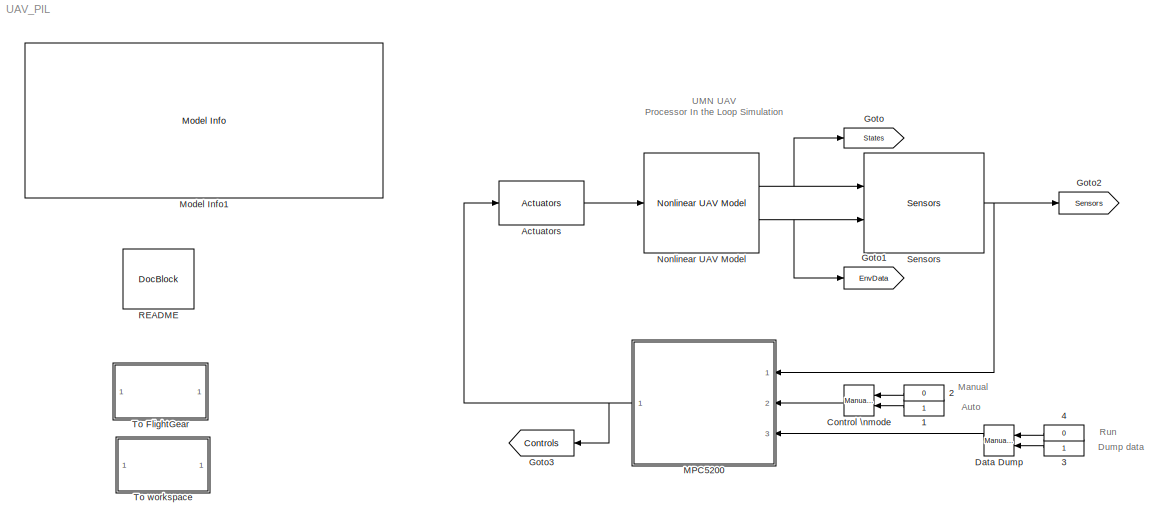
MODEL UAV_PIL
KIND model
BLOCK [Constant] 1
  OutDataType = sfix(16)
  OutDataTypeMode = uint8
  OutDataTypeStr = uint8
  OutScaling = 2^0
  SID = 960
BLOCK [Constant] 2
  OutDataType = sfix(16)
  OutDataTypeMode = uint8
  OutDataTypeStr = uint8
  OutScaling = 2^0
  SID = 961
  Value = 0
BLOCK [Constant] 3
  OutDataType = sfix(16)
  OutDataTypeMode = uint8
  OutDataTypeStr = uint8
  OutScaling = 2^0
  SID = 1062
BLOCK [Constant] 4
  OutDataType = sfix(16)
  OutDataTypeMode = uint8
  OutDataTypeStr = uint8
  OutScaling = 2^0
  SID = 1063
  Value = 0
BLOCK [Reference] Actuators  REF=Actuator_Lib/Actuators
  FunctionWithSeparateData = off
  Ports = [1, 1]
  RTWMemSecDataConstants = Inherit from model
  RTWMemSecDataInternal = Inherit from model
  RTWMemSecDataParameters = Inherit from model
  RTWMemSecFuncExecute = Inherit from model
  RTWMemSecFuncInitTerm = Inherit from model
  SID = 997
  ShowPortLabels = FromPortIcon
  SourceBlock = Actuator_Lib/Actuators
  SourceType = SubSystem
  SystemSampleTime = -1
BLOCK [Reference] Control \nmode  REF=simulink/Signal\nRouting/Manual Switch
  FunctionWithSeparateData = off
  Ports = [2, 1]
  RTWMemSecDataConstants = Inherit from model
  RTWMemSecDataInternal = Inherit from model
  RTWMemSecDataParameters = Inherit from model
  RTWMemSecFuncExecute = Inherit from model
  RTWMemSecFuncInitTerm = Inherit from model
  SID = 962
  ShowPortLabels = FromPortIcon
  SourceBlock = simulink/Signal\nRouting/Manual Switch
  SourceType = Manual Switch
  SystemSampleTime = -1
  action = 0
  sw = 1
  varsize = off
BLOCK [Reference] Data Dump  REF=simulink/Signal\nRouting/Manual Switch
  FunctionWithSeparateData = off
  Ports = [2, 1]
  RTWMemSecDataConstants = Inherit from model
  RTWMemSecDataInternal = Inherit from model
  RTWMemSecDataParameters = Inherit from model
  RTWMemSecFuncExecute = Inherit from model
  RTWMemSecFuncInitTerm = Inherit from model
  SID = 1064
  ShowPortLabels = FromPortIcon
  SourceBlock = simulink/Signal\nRouting/Manual Switch
  SourceType = Manual Switch
  SystemSampleTime = -1
  action = 0
  sw = 1
  varsize = off
BLOCK [Goto] Goto
  GotoTag = States
  SID = 1045
  TagVisibility = global
BLOCK [Goto] Goto1
  GotoTag = EnvData
  SID = 1046
  TagVisibility = global
BLOCK [Goto] Goto2
  GotoTag = Sensors
  SID = 1048
  TagVisibility = global
BLOCK [Goto] Goto3
  GotoTag = Controls
  SID = 1049
  TagVisibility = global
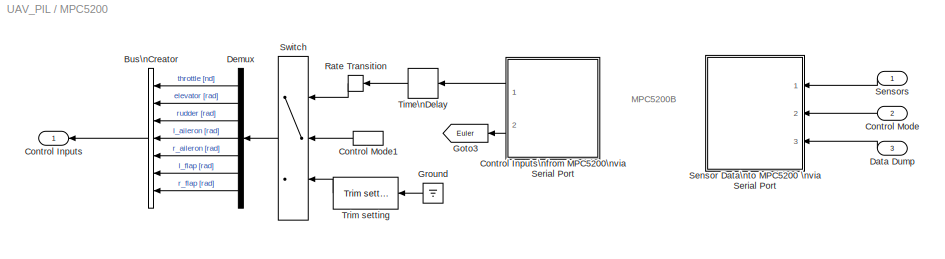
BLOCK [SubSystem] MPC5200
  FunctionWithSeparateData = off
  MaskHideContents = off
  MinAlgLoopOccurrences = off
  Opaque = off
  Ports = [3, 1]
  PropExecContextOutsideSubsystem = off
  RTWSystemCode = Auto
  RequestExecContextInheritance = off
  SID = 998
BLOCK [BusCreator] MPC5200/Bus\nCreator
  DisplayOption = bar
  Inputs = 7
  Ports = [7, 1]
  SID = 1042
BLOCK [Outport] MPC5200/Control Inputs
  IconDisplay = Port number
  OutDataType = sfix(16)
  OutScaling = 2^0
  SID = 1010
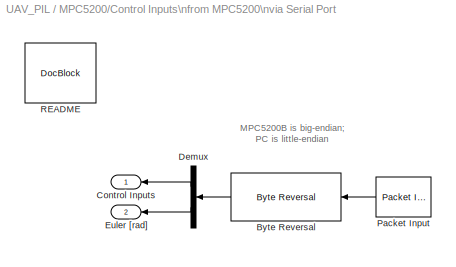
BLOCK [SubSystem] MPC5200/Control Inputs\nfrom MPC5200\nvia Serial Port
  FunctionWithSeparateData = off
  MaskHideContents = off
  MinAlgLoopOccurrences = off
  Opaque = off
  Ports = [0, 2]
  PropExecContextOutsideSubsystem = off
  RTWSystemCode = Auto
  RequestExecContextInheritance = off
  SID = 1011
BLOCK [Reference] MPC5200/Control Inputs\nfrom MPC5200\nvia Serial Port/Byte Reversal  REF=etargetslib/Byte Reversal
  Ports = [1, 1]
  SID = 1012
  SourceBlock = etargetslib/Byte Reversal
  SourceType = Byte Reversal
  numInp = 1
BLOCK [Outport] MPC5200/Control Inputs\nfrom MPC5200\nvia Serial Port/Control Inputs
  IconDisplay = Port number
  OutDataType = sfix(16)
  OutScaling = 2^0
  SID = 1015
BLOCK [Demux] MPC5200/Control Inputs\nfrom MPC5200\nvia Serial Port/Demux
  DisplayOption = bar
  Outputs = [7 3]
  Ports = [1, 2]
  SID = 1054
BLOCK [Outport] MPC5200/Control Inputs\nfrom MPC5200\nvia Serial Port/Euler [rad]
  IconDisplay = Port number
  OutDataType = sfix(16)
  OutScaling = 2^0
  Port = 2
  SID = 1053
BLOCK [Reference] MPC5200/Control Inputs\nfrom MPC5200\nvia Serial Port/Packet Input  REF=rtwinlib/Packet Input
  AttributesFormatString = Standard Devices\\nSerial Port [2h]
  DataTypes = '10*double'
  DrvAddress = 2
  DrvName = Standard_Devices/Serial_Port
  DrvOptions = [115200 8 0 0 0 0 0]
  PacketID = 1
  PacketSize = 80
  Ports = [0, 1]
  SID = 1013
  SampleTime = SampleTime
  ShowError = off
  ShowReady = off
  ShowTimestamp = off
  SourceBlock = rtwinlib/Packet Input
  SourceType = RTWin Packet Input
BLOCK [Reference] MPC5200/Control Inputs\nfrom MPC5200\nvia Serial Port/README  REF=simulink/Model-Wide\nUtilities/DocBlock
  DocumentType = Text
  FunctionWithSeparateData = off
  Ports = []
  RTWMemSecDataConstants = Inherit from model
  RTWMemSecDataInternal = Inherit from model
  RTWMemSecDataParameters = Inherit from model
  RTWMemSecFuncExecute = Inherit from model
  RTWMemSecFuncInitTerm = Inherit from model
  SID = 1014
  ShowPortLabels = FromPortIcon
  SourceBlock = simulink/Model-Wide\nUtilities/DocBlock
  SourceType = DocBlock
  SystemSampleTime = -1
  UserData = DataTag0
  UserDataPersistent = on
BLOCK [Inport] MPC5200/Control Mode
  IconDisplay = Port number
  Port = 2
  SID = 1009
BLOCK [InportShadow] MPC5200/Control Mode1
  IconDisplay = Port number
  LatchByDelayingOutsideSignal = off
  LatchInputForFeedbackSignals = off
  Port = 2
  SID = 1032
BLOCK [Inport] MPC5200/Data Dump
  IconDisplay = Port number
  Port = 3
  SID = 1061
BLOCK [Demux] MPC5200/Demux
  DisplayOption = bar
  Outputs = 7
  Ports = [1, 7]
  SID = 1043
BLOCK [Goto] MPC5200/Goto3
  GotoTag = Euler
  SID = 1056
  TagVisibility = global
BLOCK [Ground] MPC5200/Ground
  SID = 1016
BLOCK [RateTransition] MPC5200/Rate Transition
  SID = 1017
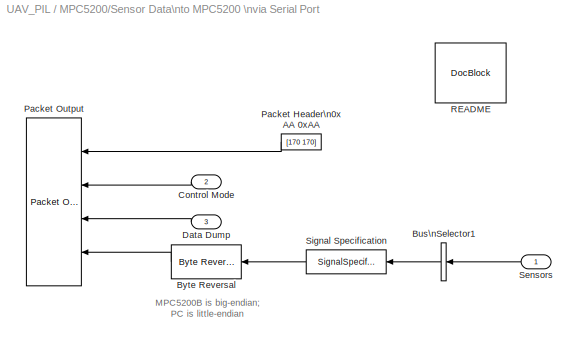
BLOCK [SubSystem] MPC5200/Sensor Data\nto MPC5200 \nvia Serial Port
  FunctionWithSeparateData = off
  MaskHideContents = off
  MinAlgLoopOccurrences = off
  Opaque = off
  Ports = [3]
  PropExecContextOutsideSubsystem = off
  RTWSystemCode = Auto
  RequestExecContextInheritance = off
  SID = 1021
BLOCK [BusSelector] MPC5200/Sensor Data\nto MPC5200 \nvia Serial Port/Bus\nSelector1
  OutputAsBus = on
  OutputSignals = p [rad/s],q [rad/s],r [rad/s],Ax [m/s^2],Ay [m/s^2],Az [m/s^2],Magnetic Field [nT],Geodetic Latitude [deg],Geodetic Longitude [deg],Altitude [m],Xdot [m/s],Ydot [m/s],Zdot [m/s],alpha [rad],beta [rad],Pd [Kpa],Ps [Kpa]
  Ports = [1, 1]
  SID = 1025
BLOCK [Reference] MPC5200/Sensor Data\nto MPC5200 \nvia Serial Port/Byte Reversal  REF=etargetslib/Byte Reversal
  Ports = [1, 1]
  SID = 1027
  SourceBlock = etargetslib/Byte Reversal
  SourceType = Byte Reversal
  numInp = 1
BLOCK [Inport] MPC5200/Sensor Data\nto MPC5200 \nvia Serial Port/Control Mode
  IconDisplay = Port number
  Port = 2
  SID = 1024
BLOCK [Inport] MPC5200/Sensor Data\nto MPC5200 \nvia Serial Port/Data Dump
  IconDisplay = Port number
  Port = 3
  SID = 1060
BLOCK [Constant] MPC5200/Sensor Data\nto MPC5200 \nvia Serial Port/Packet Header\n0xAA 0xAA
  OutDataType = sfix(16)
  OutDataTypeMode = uint8
  OutDataTypeStr = uint8
  OutScaling = 2^0
  SID = 1029
  Value = [170 170]
BLOCK [Reference] MPC5200/Sensor Data\nto MPC5200 \nvia Serial Port/Packet Output  REF=rtwinlib/Packet Output
  AttributesFormatString = Standard Devices\\nSerial Port [2h]
  DataTypes = {'2*uint8','uint8','uint8','19*double'}
  DrvAddress = 2
  DrvName = Standard_Devices/Serial_Port
  DrvOptions = [115200 8 0 0 0 0 0]
  FinalValue = []
  InitialValue = []
  PacketID = 1
  PacketSize = 156
  Ports = [4]
  SID = 1030
  SampleTime = SampleTime
  ShowError = off
  ShowReady = off
  SourceBlock = rtwinlib/Packet Output
  SourceType = RTWin Packet Output
BLOCK [Reference] MPC5200/Sensor Data\nto MPC5200 \nvia Serial Port/README  REF=simulink/Model-Wide\nUtilities/DocBlock
  DocumentType = Text
  FunctionWithSeparateData = off
  Ports = []
  RTWMemSecDataConstants = Inherit from model
  RTWMemSecDataInternal = Inherit from model
  RTWMemSecDataParameters = Inherit from model
  RTWMemSecFuncExecute = Inherit from model
  RTWMemSecFuncInitTerm = Inherit from model
  SID = 1031
  ShowPortLabels = FromPortIcon
  SourceBlock = simulink/Model-Wide\nUtilities/DocBlock
  SourceType = DocBlock
  SystemSampleTime = -1
  UserData = DataTag1
  UserDataPersistent = on
BLOCK [Inport] MPC5200/Sensor Data\nto MPC5200 \nvia Serial Port/Sensors
  IconDisplay = Port number
  SID = 1022
BLOCK [SignalSpecification] MPC5200/Sensor Data\nto MPC5200 \nvia Serial Port/Signal Specification
  DataType = double
  Dimensions = 19
  OutDataType = fixdt(1, 16)
  OutDataTypeStr = double
  OutScaling = 2^0
  SID = 1044
BLOCK [Inport] MPC5200/Sensors
  IconDisplay = Port number
  SID = 1000
BLOCK [Switch] MPC5200/Switch
  InputSameDT = off
  OutDataType = fixdt(1, 16)
  OutScaling = 2^0
  SID = 1018
  SaturateOnIntegerOverflow = off
  Threshold = 0.5
BLOCK [TransportDelay] MPC5200/Time\nDelay
  DelayTime = TimeDelay
  FixedBuffer = on
  SID = 1019
BLOCK [Reference] MPC5200/Trim setting   REF=Actuator_Lib/Trim setting 
  FunctionWithSeparateData = off
  Ports = [1, 1]
  RTWMemSecDataConstants = Inherit from model
  RTWMemSecDataInternal = Inherit from model
  RTWMemSecDataParameters = Inherit from model
  RTWMemSecFuncExecute = Inherit from model
  RTWMemSecFuncInitTerm = Inherit from model
  SID = 1020
  ShowPortLabels = FromPortIcon
  SourceBlock = Actuator_Lib/Trim setting
  SourceType = SubSystem
  SystemSampleTime = -1
BLOCK [Reference] Model Info1  REF=simulink/Model-Wide\nUtilities/Model Info
  BlockCM = None
  DisplayStringWithTags = MODEL INFORMATION\nUMN UAV Processor-in-the-Loop Simulation\n\nUniversity of Minnesota\nAerospace Engineering and Mechanics\nCopyright 2011 Regents of the University of Minnesota. All rights reserved.\n\n== SVN Info ==\n%<ModelVersion>\nLast modified by %<LastModifiedBy> on %<LastModificationDate>
  Frame = on
  FunctionWithSeparateData = off
  HorizontalTextAlignment = Left
  InitialBlockCM = None
  LeftAlignmentValue = 0.02
  MaskDisplayString = MODEL INFORMATION\\nUMN UAV Processor-in-the-Loop Simulation\\n\\nUniversity of Minnesota\\nAerospace Engineering and Mechanics\\nCopyright 2011 Regents of the University of Minnesota. All rights reserved.\\n\\n== SVN Info ==\\n$Id$\\nLast modified by dept of AEM on 23-Nov-2011 13:37:22
  Ports = []
  RTWMemSecDataConstants = Inherit from model
  RTWMemSecDataInternal = Inherit from model
  RTWMemSecDataParameters = Inherit from model
  RTWMemSecFuncExecute = Inherit from model
  RTWMemSecFuncInitTerm = Inherit from model
  SID = 837
  ShowPortLabels = FromPortIcon
  SourceBlock = simulink/Model-Wide\nUtilities/Model Info
  SourceBlockDiagram = UAV_PIL
  SourceType = CMBlock
  SystemSampleTime = -1
  TagMaxNumber = 20
BLOCK [Reference] Nonlinear UAV Model  REF=NonlinearModel_Lib/Nonlinear UAV Model
  FunctionWithSeparateData = off
  Ports = [1, 2]
  RTWMemSecDataConstants = Inherit from model
  RTWMemSecDataInternal = Inherit from model
  RTWMemSecDataParameters = Inherit from model
  RTWMemSecFuncExecute = Inherit from model
  RTWMemSecFuncInitTerm = Inherit from model
  SID = 779
  ShowPortLabels = FromPortIcon
  SourceBlock = NonlinearModel_Lib/Nonlinear UAV Model
  SourceType = SubSystem
  SystemSampleTime = -1
BLOCK [Reference] README  REF=simulink/Model-Wide\nUtilities/DocBlock
  DocumentType = Text
  FunctionWithSeparateData = off
  Ports = []
  RTWMemSecDataConstants = Inherit from model
  RTWMemSecDataInternal = Inherit from model
  RTWMemSecDataParameters = Inherit from model
  RTWMemSecFuncExecute = Inherit from model
  RTWMemSecFuncInitTerm = Inherit from model
  SID = 823
  ShowPortLabels = FromPortIcon
  SourceBlock = simulink/Model-Wide\nUtilities/DocBlock
  SourceType = DocBlock
  SystemSampleTime = -1
  UserData = DataTag2
  UserDataPersistent = on
BLOCK [Reference] Sensors  REF=Sensors_Lib/Sensors
  FunctionWithSeparateData = off
  Ports = [2, 1]
  RTWMemSecDataConstants = Inherit from model
  RTWMemSecDataInternal = Inherit from model
  RTWMemSecDataParameters = Inherit from model
  RTWMemSecFuncExecute = Inherit from model
  RTWMemSecFuncInitTerm = Inherit from model
  SID = 883
  ShowPortLabels = FromPortIcon
  SourceBlock = Sensors_Lib/Sensors
  SourceType = SubSystem
  SystemSampleTime = -1
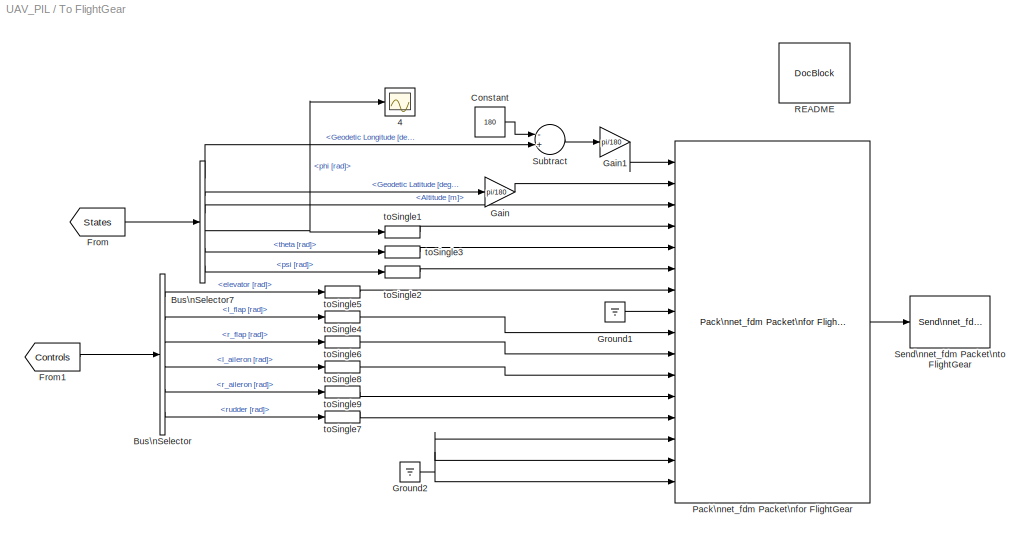
BLOCK [SubSystem] To FlightGear
  FunctionWithSeparateData = off
  MaskDisplay = text(0.1,.5, 'To FlightGear')
  MaskHideContents = off
  MaskIconFrame = on
  MaskIconOpaque = on
  MaskIconRotate = none
  MaskIconUnits = normalized
  MaskPortRotate = default
  MinAlgLoopOccurrences = off
  Opaque = off
  Ports = []
  PropExecContextOutsideSubsystem = off
  RTWSystemCode = Auto
  RequestExecContextInheritance = off
  SID = 29
BLOCK [Scope] To FlightGear/4
  DataFormat = StructureWithTime
  Floating = off
  NumInputPorts = 1
  Ports = [1]
  SID = 842
  SampleTime = 0
  SaveName = ScopeData8
  TimeRange = 10
  YMax = 0.5
  YMin = -0.4
BLOCK [BusSelector] To FlightGear/Bus\nSelector
  OutputSignals = elevator [rad],l_flap [rad],r_flap [rad],l_aileron [rad],r_aileron [rad],rudder [rad]
  Ports = [1, 6]
  SID = 33
BLOCK [BusSelector] To FlightGear/Bus\nSelector7
  OutputSignals = Nav.Geodetic Longitude [deg],Nav.Geodetic Latitude [deg],Nav.Altitude [m],Euler [rad].phi [rad],Euler [rad].theta [rad],Euler [rad].psi [rad]
  Ports = [1, 6]
  SID = 35
BLOCK [Constant] To FlightGear/Constant
  OutDataType = fixdt(1, 16)
  OutScaling = 2^0
  SID = 36
  Value = 180
BLOCK [From] To FlightGear/From
  GotoTag = States
  SID = 1036
  TagVisibility = global
BLOCK [From] To FlightGear/From1
  GotoTag = Controls
  SID = 1037
  TagVisibility = global
BLOCK [Gain] To FlightGear/Gain
  Gain = pi/180
  OutDataType = fixdt(1, 16)
  OutDataTypeMode = Inherit via internal rule
  OutDataTypeStr = Inherit: Inherit via internal rule
  OutScaling = 2^0
  ParamDataTypeStr = Inherit: Inherit via internal rule
  ParameterDataType = fixdt(1, 16)
  ParameterDataTypeMode = Inherit via internal rule
  ParameterScaling = 2^0
  SID = 37
  SaturateOnIntegerOverflow = off
BLOCK [Gain] To FlightGear/Gain1
  Gain = pi/180
  OutDataType = fixdt(1, 16)
  OutDataTypeMode = Inherit via internal rule
  OutDataTypeStr = Inherit: Inherit via internal rule
  OutScaling = 2^0
  ParamDataTypeStr = Inherit: Inherit via internal rule
  ParameterDataType = fixdt(1, 16)
  ParameterDataTypeMode = Inherit via internal rule
  ParameterScaling = 2^0
  SID = 38
  SaturateOnIntegerOverflow = off
BLOCK [Ground] To FlightGear/Ground1
  SID = 39
BLOCK [Ground] To FlightGear/Ground2
  SID = 40
BLOCK [Reference] To FlightGear/Pack\nnet_fdm Packet\nfor FlightGear  REF=aerolibfltsims/Pack\nnet_fdm Packet\nfor FlightGear
  AttributesFormatString = Version Selected: %<FlightGearVersion>
  FlightGearVersion = v1.9.1
  Ports = [16, 1]
  SID = 41
  SampleTime = -1
  ShowControlSurfacePositionInputs = on
  ShowEngineFuelInputs = off
  ShowEnvironmentInputs = off
  ShowLandingGearInputs = off
  ShowPositionAttitudeInputs = on
  ShowVelocityAccelerationInputs = off
  SourceBlock = aerolibfltsims/Pack\nnet_fdm Packet\nfor FlightGear
  SourceType = FlightGearPackNetFdm
BLOCK [Reference] To FlightGear/README  REF=simulink/Model-Wide\nUtilities/DocBlock
  DocumentType = Text
  FunctionWithSeparateData = off
  Ports = []
  RTWMemSecDataConstants = Inherit from model
  RTWMemSecDataInternal = Inherit from model
  RTWMemSecDataParameters = Inherit from model
  RTWMemSecFuncExecute = Inherit from model
  RTWMemSecFuncInitTerm = Inherit from model
  SID = 833
  ShowPortLabels = FromPortIcon
  SourceBlock = simulink/Model-Wide\nUtilities/DocBlock
  SourceType = DocBlock
  SystemSampleTime = -1
  UserData = DataTag3
  UserDataPersistent = on
BLOCK [Reference] To FlightGear/Send\nnet_fdm Packet\nto FlightGear  REF=aerolibfltsims/Send\nnet_fdm Packet\nto FlightGear
  DestinationIpAddress = 127.0.0.1
  DestinationPort = 5500
  LocalIpPort = -1
  Ports = [1]
  SID = 45
  SampleTime = -1
  SourceBlock = aerolibfltsims/Send\nnet_fdm Packet\nto FlightGear
  SourceType = FlightGearSendNetFdm
  varLen = off
BLOCK [Sum] To FlightGear/Subtract
  InputSameDT = off
  Inputs = -+
  OutDataType = fixdt(1, 16)
  OutDataTypeMode = Inherit via internal rule
  OutDataTypeStr = Inherit: Inherit via internal rule
  OutScaling = 2^-10
  Ports = [2, 1]
  SID = 46
  SaturateOnIntegerOverflow = off
BLOCK [DataTypeConversion] To FlightGear/toSingle1
  OutDataType = sfix(16)
  OutDataTypeMode = single
  OutDataTypeStr = single
  OutScaling = 2^0
  RndMeth = Floor
  SID = 48
  SaturateOnIntegerOverflow = off
BLOCK [DataTypeConversion] To FlightGear/toSingle2
  OutDataType = sfix(16)
  OutDataTypeMode = single
  OutDataTypeStr = single
  OutScaling = 2^0
  RndMeth = Floor
  SID = 49
  SaturateOnIntegerOverflow = off
BLOCK [DataTypeConversion] To FlightGear/toSingle3
  OutDataType = sfix(16)
  OutDataTypeMode = single
  OutDataTypeStr = single
  OutScaling = 2^0
  RndMeth = Floor
  SID = 50
  SaturateOnIntegerOverflow = off
BLOCK [DataTypeConversion] To FlightGear/toSingle4
  OutDataType = sfix(16)
  OutDataTypeMode = single
  OutDataTypeStr = single
  OutScaling = 2^0
  RndMeth = Floor
  SID = 835
  SaturateOnIntegerOverflow = off
BLOCK [DataTypeConversion] To FlightGear/toSingle5
  OutDataType = sfix(16)
  OutDataTypeMode = single
  OutDataTypeStr = single
  OutScaling = 2^0
  RndMeth = Floor
  SID = 51
  SaturateOnIntegerOverflow = off
BLOCK [DataTypeConversion] To FlightGear/toSingle6
  OutDataType = sfix(16)
  OutDataTypeMode = single
  OutDataTypeStr = single
  OutScaling = 2^0
  RndMeth = Floor
  SID = 52
  SaturateOnIntegerOverflow = off
BLOCK [DataTypeConversion] To FlightGear/toSingle7
  OutDataType = sfix(16)
  OutDataTypeMode = single
  OutDataTypeStr = single
  OutScaling = 2^0
  RndMeth = Floor
  SID = 53
  SaturateOnIntegerOverflow = off
BLOCK [DataTypeConversion] To FlightGear/toSingle8
  OutDataType = sfix(16)
  OutDataTypeMode = single
  OutDataTypeStr = single
  OutScaling = 2^0
  RndMeth = Floor
  SID = 970
  SaturateOnIntegerOverflow = off
BLOCK [DataTypeConversion] To FlightGear/toSingle9
  OutDataType = sfix(16)
  OutDataTypeMode = single
  OutDataTypeStr = single
  OutScaling = 2^0
  RndMeth = Floor
  SID = 971
  SaturateOnIntegerOverflow = off
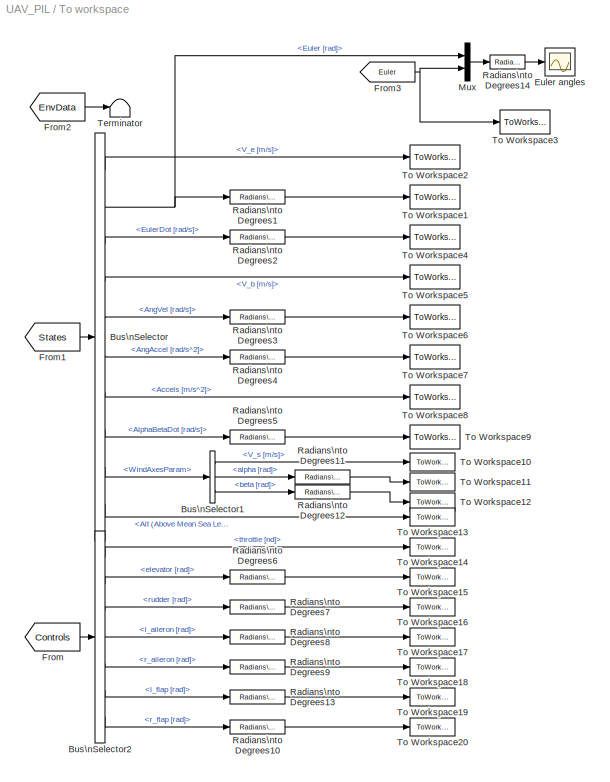
BLOCK [SubSystem] To workspace
  FunctionWithSeparateData = off
  MaskDisplay = text(0.1,.5, 'To Workspace')
  MaskHideContents = off
  MaskIconFrame = on
  MaskIconOpaque = on
  MaskIconRotate = none
  MaskIconUnits = normalized
  MaskPortRotate = default
  MinAlgLoopOccurrences = off
  Opaque = off
  Ports = []
  PropExecContextOutsideSubsystem = off
  RTWSystemCode = Auto
  RequestExecContextInheritance = off
  SID = 916
BLOCK [BusSelector] To workspace/Bus\nSelector
  OutputSignals = V_e [m/s],Euler [rad],EulerDot [rad/s],V_b [m/s],AngVel [rad/s],AngAccel [rad/s^2],Accels [m/s^2],AlphaBetaDot [rad/s],WindAxesParam,Nav.Alt (Above Mean Sea Level) [m]
  Ports = [1, 10]
  SID = 919
BLOCK [BusSelector] To workspace/Bus\nSelector1
  OutputSignals = V_s [m/s],alpha [rad],beta [rad]
  Ports = [1, 3]
  SID = 944
BLOCK [BusSelector] To workspace/Bus\nSelector2
  OutputSignals = throttle [nd],elevator [rad],rudder [rad],l_aileron [rad],r_aileron [rad],l_flap [rad],r_flap [rad]
  Ports = [1, 7]
  SID = 930
BLOCK [Scope] To workspace/Euler angles
  DataFormat = StructureWithTime
  Floating = off
  NumInputPorts = 1
  Ports = [1]
  SID = 932
  SampleTime = 0
  SaveName = ScopeData1
  TimeRange = 10
  YMax = 140
  YMin = -40
BLOCK [From] To workspace/From
  GotoTag = Controls
  SID = 1038
  TagVisibility = global
BLOCK [From] To workspace/From1
  GotoTag = States
  SID = 1039
  TagVisibility = global
BLOCK [From] To workspace/From2
  GotoTag = EnvData
  SID = 1040
  TagVisibility = global
BLOCK [From] To workspace/From3
  GotoTag = Euler
  SID = 1057
  TagVisibility = global
BLOCK [Mux] To workspace/Mux
  DisplayOption = bar
  Inputs = 2
  Ports = [2, 1]
  SID = 1058
BLOCK [Reference] To workspace/Radians\nto Degrees1  REF=simulink_extras/Transformations/Radians\nto Degrees
  FunctionWithSeparateData = off
  Ports = [1, 1]
  RTWMemSecDataConstants = Inherit from model
  RTWMemSecDataInternal = Inherit from model
  RTWMemSecDataParameters = Inherit from model
  RTWMemSecFuncExecute = Inherit from model
  RTWMemSecFuncInitTerm = Inherit from model
  SID = 934
  ShowPortLabels = FromPortIcon
  SourceBlock = simulink_extras/Transformations/Radians\nto Degrees
  SourceType = RadiansToDegrees
  SystemSampleTime = -1
BLOCK [Reference] To workspace/Radians\nto Degrees10  REF=simulink_extras/Transformations/Radians\nto Degrees
  FunctionWithSeparateData = off
  Ports = [1, 1]
  RTWMemSecDataConstants = Inherit from model
  RTWMemSecDataInternal = Inherit from model
  RTWMemSecDataParameters = Inherit from model
  RTWMemSecFuncExecute = Inherit from model
  RTWMemSecFuncInitTerm = Inherit from model
  SID = 943
  ShowPortLabels = FromPortIcon
  SourceBlock = simulink_extras/Transformations/Radians\nto Degrees
  SourceType = RadiansToDegrees
  SystemSampleTime = -1
BLOCK [Reference] To workspace/Radians\nto Degrees11  REF=simulink_extras/Transformations/Radians\nto Degrees
  FunctionWithSeparateData = off
  Ports = [1, 1]
  RTWMemSecDataConstants = Inherit from model
  RTWMemSecDataInternal = Inherit from model
  RTWMemSecDataParameters = Inherit from model
  RTWMemSecFuncExecute = Inherit from model
  RTWMemSecFuncInitTerm = Inherit from model
  SID = 946
  ShowPortLabels = FromPortIcon
  SourceBlock = simulink_extras/Transformations/Radians\nto Degrees
  SourceType = RadiansToDegrees
  SystemSampleTime = -1
BLOCK [Reference] To workspace/Radians\nto Degrees12  REF=simulink_extras/Transformations/Radians\nto Degrees
  FunctionWithSeparateData = off
  Ports = [1, 1]
  RTWMemSecDataConstants = Inherit from model
  RTWMemSecDataInternal = Inherit from model
  RTWMemSecDataParameters = Inherit from model
  RTWMemSecFuncExecute = Inherit from model
  RTWMemSecFuncInitTerm = Inherit from model
  SID = 947
  ShowPortLabels = FromPortIcon
  SourceBlock = simulink_extras/Transformations/Radians\nto Degrees
  SourceType = RadiansToDegrees
  SystemSampleTime = -1
BLOCK [Reference] To workspace/Radians\nto Degrees13  REF=simulink_extras/Transformations/Radians\nto Degrees
  FunctionWithSeparateData = off
  Ports = [1, 1]
  RTWMemSecDataConstants = Inherit from model
  RTWMemSecDataInternal = Inherit from model
  RTWMemSecDataParameters = Inherit from model
  RTWMemSecFuncExecute = Inherit from model
  RTWMemSecFuncInitTerm = Inherit from model
  SID = 972
  ShowPortLabels = FromPortIcon
  SourceBlock = simulink_extras/Transformations/Radians\nto Degrees
  SourceType = RadiansToDegrees
  SystemSampleTime = -1
BLOCK [Reference] To workspace/Radians\nto Degrees14  REF=simulink_extras/Transformations/Radians\nto Degrees
  FunctionWithSeparateData = off
  Ports = [1, 1]
  RTWMemSecDataConstants = Inherit from model
  RTWMemSecDataInternal = Inherit from model
  RTWMemSecDataParameters = Inherit from model
  RTWMemSecFuncExecute = Inherit from model
  RTWMemSecFuncInitTerm = Inherit from model
  SID = 1059
  ShowPortLabels = FromPortIcon
  SourceBlock = simulink_extras/Transformations/Radians\nto Degrees
  SourceType = RadiansToDegrees
  SystemSampleTime = -1
BLOCK [Reference] To workspace/Radians\nto Degrees2  REF=simulink_extras/Transformations/Radians\nto Degrees
  FunctionWithSeparateData = off
  Ports = [1, 1]
  RTWMemSecDataConstants = Inherit from model
  RTWMemSecDataInternal = Inherit from model
  RTWMemSecDataParameters = Inherit from model
  RTWMemSecFuncExecute = Inherit from model
  RTWMemSecFuncInitTerm = Inherit from model
  SID = 935
  ShowPortLabels = FromPortIcon
  SourceBlock = simulink_extras/Transformations/Radians\nto Degrees
  SourceType = RadiansToDegrees
  SystemSampleTime = -1
BLOCK [Reference] To workspace/Radians\nto Degrees3  REF=simulink_extras/Transformations/Radians\nto Degrees
  FunctionWithSeparateData = off
  Ports = [1, 1]
  RTWMemSecDataConstants = Inherit from model
  RTWMemSecDataInternal = Inherit from model
  RTWMemSecDataParameters = Inherit from model
  RTWMemSecFuncExecute = Inherit from model
  RTWMemSecFuncInitTerm = Inherit from model
  SID = 936
  ShowPortLabels = FromPortIcon
  SourceBlock = simulink_extras/Transformations/Radians\nto Degrees
  SourceType = RadiansToDegrees
  SystemSampleTime = -1
BLOCK [Reference] To workspace/Radians\nto Degrees4  REF=simulink_extras/Transformations/Radians\nto Degrees
  FunctionWithSeparateData = off
  Ports = [1, 1]
  RTWMemSecDataConstants = Inherit from model
  RTWMemSecDataInternal = Inherit from model
  RTWMemSecDataParameters = Inherit from model
  RTWMemSecFuncExecute = Inherit from model
  RTWMemSecFuncInitTerm = Inherit from model
  SID = 937
  ShowPortLabels = FromPortIcon
  SourceBlock = simulink_extras/Transformations/Radians\nto Degrees
  SourceType = RadiansToDegrees
  SystemSampleTime = -1
BLOCK [Reference] To workspace/Radians\nto Degrees5  REF=simulink_extras/Transformations/Radians\nto Degrees
  FunctionWithSeparateData = off
  Ports = [1, 1]
  RTWMemSecDataConstants = Inherit from model
  RTWMemSecDataInternal = Inherit from model
  RTWMemSecDataParameters = Inherit from model
  RTWMemSecFuncExecute = Inherit from model
  RTWMemSecFuncInitTerm = Inherit from model
  SID = 938
  ShowPortLabels = FromPortIcon
  SourceBlock = simulink_extras/Transformations/Radians\nto Degrees
  SourceType = RadiansToDegrees
  SystemSampleTime = -1
BLOCK [Reference] To workspace/Radians\nto Degrees6  REF=simulink_extras/Transformations/Radians\nto Degrees
  FunctionWithSeparateData = off
  Ports = [1, 1]
  RTWMemSecDataConstants = Inherit from model
  RTWMemSecDataInternal = Inherit from model
  RTWMemSecDataParameters = Inherit from model
  RTWMemSecFuncExecute = Inherit from model
  RTWMemSecFuncInitTerm = Inherit from model
  SID = 939
  ShowPortLabels = FromPortIcon
  SourceBlock = simulink_extras/Transformations/Radians\nto Degrees
  SourceType = RadiansToDegrees
  SystemSampleTime = -1
BLOCK [Reference] To workspace/Radians\nto Degrees7  REF=simulink_extras/Transformations/Radians\nto Degrees
  FunctionWithSeparateData = off
  Ports = [1, 1]
  RTWMemSecDataConstants = Inherit from model
  RTWMemSecDataInternal = Inherit from model
  RTWMemSecDataParameters = Inherit from model
  RTWMemSecFuncExecute = Inherit from model
  RTWMemSecFuncInitTerm = Inherit from model
  SID = 940
  ShowPortLabels = FromPortIcon
  SourceBlock = simulink_extras/Transformations/Radians\nto Degrees
  SourceType = RadiansToDegrees
  SystemSampleTime = -1
BLOCK [Reference] To workspace/Radians\nto Degrees8  REF=simulink_extras/Transformations/Radians\nto Degrees
  FunctionWithSeparateData = off
  Ports = [1, 1]
  RTWMemSecDataConstants = Inherit from model
  RTWMemSecDataInternal = Inherit from model
  RTWMemSecDataParameters = Inherit from model
  RTWMemSecFuncExecute = Inherit from model
  RTWMemSecFuncInitTerm = Inherit from model
  SID = 941
  ShowPortLabels = FromPortIcon
  SourceBlock = simulink_extras/Transformations/Radians\nto Degrees
  SourceType = RadiansToDegrees
  SystemSampleTime = -1
BLOCK [Reference] To workspace/Radians\nto Degrees9  REF=simulink_extras/Transformations/Radians\nto Degrees
  FunctionWithSeparateData = off
  Ports = [1, 1]
  RTWMemSecDataConstants = Inherit from model
  RTWMemSecDataInternal = Inherit from model
  RTWMemSecDataParameters = Inherit from model
  RTWMemSecFuncExecute = Inherit from model
  RTWMemSecFuncInitTerm = Inherit from model
  SID = 942
  ShowPortLabels = FromPortIcon
  SourceBlock = simulink_extras/Transformations/Radians\nto Degrees
  SourceType = RadiansToDegrees
  SystemSampleTime = -1
BLOCK [Terminator] To workspace/Terminator
  SID = 968
BLOCK [ToWorkspace] To workspace/To Workspace1
  MaxDataPoints = inf
  Ports = [1]
  SID = 1065
  SampleTime = -1
  SaveFormat = Array
  VariableName = Euler
BLOCK [ToWorkspace] To workspace/To Workspace10
  MaxDataPoints = inf
  Ports = [1]
  SID = 1074
  SampleTime = -1
  SaveFormat = Array
  VariableName = V_s
BLOCK [ToWorkspace] To workspace/To Workspace11
  MaxDataPoints = inf
  Ports = [1]
  SID = 1075
  SampleTime = -1
  SaveFormat = Array
  VariableName = alpha
BLOCK [ToWorkspace] To workspace/To Workspace12
  MaxDataPoints = inf
  Ports = [1]
  SID = 1076
  SampleTime = -1
  SaveFormat = Array
  VariableName = beta
BLOCK [ToWorkspace] To workspace/To Workspace13
  MaxDataPoints = inf
  Ports = [1]
  SID = 1077
  SampleTime = -1
  SaveFormat = Array
  VariableName = alt
BLOCK [ToWorkspace] To workspace/To Workspace14
  MaxDataPoints = inf
  Ports = [1]
  SID = 1078
  SampleTime = -1
  SaveFormat = Array
  VariableName = dthr
BLOCK [ToWorkspace] To workspace/To Workspace15
  MaxDataPoints = inf
  Ports = [1]
  SID = 1079
  SampleTime = -1
  SaveFormat = Array
  VariableName = de
BLOCK [ToWorkspace] To workspace/To Workspace16
  MaxDataPoints = inf
  Ports = [1]
  SID = 1080
  SampleTime = -1
  SaveFormat = Array
  VariableName = dr
BLOCK [ToWorkspace] To workspace/To Workspace17
  MaxDataPoints = inf
  Ports = [1]
  SID = 1081
  SampleTime = -1
  SaveFormat = Array
  VariableName = da_l
BLOCK [ToWorkspace] To workspace/To Workspace18
  MaxDataPoints = inf
  Ports = [1]
  SID = 1082
  SampleTime = -1
  SaveFormat = Array
  VariableName = da_r
BLOCK [ToWorkspace] To workspace/To Workspace19
  MaxDataPoints = inf
  Ports = [1]
  SID = 1083
  SampleTime = -1
  SaveFormat = Array
  VariableName = df_l
BLOCK [ToWorkspace] To workspace/To Workspace2
  MaxDataPoints = inf
  Ports = [1]
  SID = 915
  SampleTime = -1
  SaveFormat = Array
  VariableName = V_e
BLOCK [ToWorkspace] To workspace/To Workspace20
  MaxDataPoints = inf
  Ports = [1]
  SID = 1084
  SampleTime = -1
  SaveFormat = Array
  VariableName = df_r
BLOCK [ToWorkspace] To workspace/To Workspace3
  MaxDataPoints = inf
  Ports = [1]
  SID = 1066
  SampleTime = -1
  SaveFormat = Array
  VariableName = Euler_nav
BLOCK [ToWorkspace] To workspace/To Workspace4
  MaxDataPoints = inf
  Ports = [1]
  SID = 1067
  SampleTime = -1
  SaveFormat = Array
  VariableName = EulerDot
BLOCK [ToWorkspace] To workspace/To Workspace5
  MaxDataPoints = inf
  Ports = [1]
  SID = 1069
  SampleTime = -1
  SaveFormat = Array
  VariableName = V_b
BLOCK [ToWorkspace] To workspace/To Workspace6
  MaxDataPoints = inf
  Ports = [1]
  SID = 1070
  SampleTime = -1
  SaveFormat = Array
  VariableName = AngVel
BLOCK [ToWorkspace] To workspace/To Workspace7
  MaxDataPoints = inf
  Ports = [1]
  SID = 1071
  SampleTime = -1
  SaveFormat = Array
  VariableName = AngAccel
BLOCK [ToWorkspace] To workspace/To Workspace8
  MaxDataPoints = inf
  Ports = [1]
  SID = 1072
  SampleTime = -1
  SaveFormat = Array
  VariableName = Accels
BLOCK [ToWorkspace] To workspace/To Workspace9
  MaxDataPoints = inf
  Ports = [1]
  SID = 1073
  SampleTime = -1
  SaveFormat = Array
  VariableName = AlphaBetaDot
ANNOTATION (root): Auto
ANNOTATION (root): Dump data
ANNOTATION (root): Manual
ANNOTATION (root): Run
ANNOTATION (root): UMN UAV\nProcessor In the Loop Simulation
ANNOTATION MPC5200: MPC5200B
ANNOTATION MPC5200/Control Inputs\nfrom MPC5200\nvia Serial Port: MPC5200B is big-endian;\nPC is little-endian
ANNOTATION MPC5200/Sensor Data\nto MPC5200 \nvia Serial Port: MPC5200B is big-endian;\nPC is little-endian
LINE 1:1 -> Control \nmode:2
LINE 2:1 -> Control \nmode:1
LINE 3:1 -> Data Dump:2
LINE 4:1 -> Data Dump:1
LINE Actuators:1 -> Nonlinear UAV Model:1
LINE Control \nmode:1 -> MPC5200:2
LINE Data Dump:1 -> MPC5200:3
LINE MPC5200/Bus\nCreator:1 -> MPC5200/Control Inputs:1
LINE MPC5200/Control Inputs\nfrom MPC5200\nvia Serial Port/Byte Reversal:1 -> MPC5200/Control Inputs\nfrom MPC5200\nvia Serial Port/Demux:1
LINE MPC5200/Control Inputs\nfrom MPC5200\nvia Serial Port/Demux:1 -> MPC5200/Control Inputs\nfrom MPC5200\nvia Serial Port/Control Inputs:1
LINE MPC5200/Control Inputs\nfrom MPC5200\nvia Serial Port/Demux:2 -> MPC5200/Control Inputs\nfrom MPC5200\nvia Serial Port/Euler [rad]:1
LINE MPC5200/Control Inputs\nfrom MPC5200\nvia Serial Port/Packet Input:1 -> MPC5200/Control Inputs\nfrom MPC5200\nvia Serial Port/Byte Reversal:1
LINE MPC5200/Control Inputs\nfrom MPC5200\nvia Serial Port:1 -> MPC5200/Time\nDelay:1
LINE MPC5200/Control Inputs\nfrom MPC5200\nvia Serial Port:2 -> MPC5200/Goto3:1
LINE MPC5200/Control Mode1:1 -> MPC5200/Switch:2
LINE MPC5200/Control Mode:1 -> MPC5200/Sensor Data\nto MPC5200 \nvia Serial Port:2
LINE MPC5200/Data Dump:1 -> MPC5200/Sensor Data\nto MPC5200 \nvia Serial Port:3
LINE MPC5200/Demux:1 -> MPC5200/Bus\nCreator:1
LINE MPC5200/Demux:2 -> MPC5200/Bus\nCreator:2
LINE MPC5200/Demux:3 -> MPC5200/Bus\nCreator:3
LINE MPC5200/Demux:4 -> MPC5200/Bus\nCreator:4
LINE MPC5200/Demux:5 -> MPC5200/Bus\nCreator:5
LINE MPC5200/Demux:6 -> MPC5200/Bus\nCreator:6
LINE MPC5200/Demux:7 -> MPC5200/Bus\nCreator:7
LINE MPC5200/Ground:1 -> MPC5200/Trim setting :1
LINE MPC5200/Rate Transition:1 -> MPC5200/Switch:1
LINE MPC5200/Sensor Data\nto MPC5200 \nvia Serial Port/Bus\nSelector1:1 -> MPC5200/Sensor Data\nto MPC5200 \nvia Serial Port/Signal Specification:1
LINE MPC5200/Sensor Data\nto MPC5200 \nvia Serial Port/Byte Reversal:1 -> MPC5200/Sensor Data\nto MPC5200 \nvia Serial Port/Packet Output:4
LINE MPC5200/Sensor Data\nto MPC5200 \nvia Serial Port/Control Mode:1 -> MPC5200/Sensor Data\nto MPC5200 \nvia Serial Port/Packet Output:2
LINE MPC5200/Sensor Data\nto MPC5200 \nvia Serial Port/Data Dump:1 -> MPC5200/Sensor Data\nto MPC5200 \nvia Serial Port/Packet Output:3
LINE MPC5200/Sensor Data\nto MPC5200 \nvia Serial Port/Packet Header\n0xAA 0xAA:1 -> MPC5200/Sensor Data\nto MPC5200 \nvia Serial Port/Packet Output:1
LINE MPC5200/Sensor Data\nto MPC5200 \nvia Serial Port/Sensors:1 -> MPC5200/Sensor Data\nto MPC5200 \nvia Serial Port/Bus\nSelector1:1
LINE MPC5200/Sensor Data\nto MPC5200 \nvia Serial Port/Signal Specification:1 -> MPC5200/Sensor Data\nto MPC5200 \nvia Serial Port/Byte Reversal:1
LINE MPC5200/Sensors:1 -> MPC5200/Sensor Data\nto MPC5200 \nvia Serial Port:1
LINE MPC5200/Switch:1 -> MPC5200/Demux:1
LINE MPC5200/Time\nDelay:1 -> MPC5200/Rate Transition:1
LINE MPC5200/Trim setting :1 -> MPC5200/Switch:3
NET MPC5200:1 -> Actuators:1, Goto3:1
NET Nonlinear UAV Model:1 -> Goto:1, Sensors:1
NET Nonlinear UAV Model:2 -> Goto1:1, Sensors:2
NET Sensors:1 -> Goto2:1, MPC5200:1
LINE To FlightGear/Bus\nSelector7:1 -> To FlightGear/Subtract:2
LINE To FlightGear/Bus\nSelector7:2 -> To FlightGear/Gain:1
LINE To FlightGear/Bus\nSelector7:3 -> To FlightGear/Pack\nnet_fdm Packet\nfor FlightGear:3
NET To FlightGear/Bus\nSelector7:4 -> To FlightGear/4:1, To FlightGear/toSingle1:1
LINE To FlightGear/Bus\nSelector7:5 -> To FlightGear/toSingle3:1
LINE To FlightGear/Bus\nSelector7:6 -> To FlightGear/toSingle2:1
LINE To FlightGear/Bus\nSelector:1 -> To FlightGear/toSingle5:1
LINE To FlightGear/Bus\nSelector:2 -> To FlightGear/toSingle4:1
LINE To FlightGear/Bus\nSelector:3 -> To FlightGear/toSingle6:1
LINE To FlightGear/Bus\nSelector:4 -> To FlightGear/toSingle8:1
LINE To FlightGear/Bus\nSelector:5 -> To FlightGear/toSingle9:1
LINE To FlightGear/Bus\nSelector:6 -> To FlightGear/toSingle7:1
LINE To FlightGear/Constant:1 -> To FlightGear/Subtract:1
LINE To FlightGear/From1:1 -> To FlightGear/Bus\nSelector:1
LINE To FlightGear/From:1 -> To FlightGear/Bus\nSelector7:1
LINE To FlightGear/Gain1:1 -> To FlightGear/Pack\nnet_fdm Packet\nfor FlightGear:1
LINE To FlightGear/Gain:1 -> To FlightGear/Pack\nnet_fdm Packet\nfor FlightGear:2
LINE To FlightGear/Ground1:1 -> To FlightGear/Pack\nnet_fdm Packet\nfor FlightGear:8
NET To FlightGear/Ground2:1 -> To FlightGear/Pack\nnet_fdm Packet\nfor FlightGear:14, To FlightGear/Pack\nnet_fdm Packet\nfor FlightGear:15, To FlightGear/Pack\nnet_fdm Packet\nfor FlightGear:16
LINE To FlightGear/Pack\nnet_fdm Packet\nfor FlightGear:1 -> To FlightGear/Send\nnet_fdm Packet\nto FlightGear:1
LINE To FlightGear/Subtract:1 -> To FlightGear/Gain1:1
LINE To FlightGear/toSingle1:1 -> To FlightGear/Pack\nnet_fdm Packet\nfor FlightGear:4
LINE To FlightGear/toSingle2:1 -> To FlightGear/Pack\nnet_fdm Packet\nfor FlightGear:6
LINE To FlightGear/toSingle3:1 -> To FlightGear/Pack\nnet_fdm Packet\nfor FlightGear:5
LINE To FlightGear/toSingle4:1 -> To FlightGear/Pack\nnet_fdm Packet\nfor FlightGear:9
LINE To FlightGear/toSingle5:1 -> To FlightGear/Pack\nnet_fdm Packet\nfor FlightGear:7
LINE To FlightGear/toSingle6:1 -> To FlightGear/Pack\nnet_fdm Packet\nfor FlightGear:10
LINE To FlightGear/toSingle7:1 -> To FlightGear/Pack\nnet_fdm Packet\nfor FlightGear:13
LINE To FlightGear/toSingle8:1 -> To FlightGear/Pack\nnet_fdm Packet\nfor FlightGear:11
LINE To FlightGear/toSingle9:1 -> To FlightGear/Pack\nnet_fdm Packet\nfor FlightGear:12
LINE To workspace/Bus\nSelector1:1 -> To workspace/To Workspace10:1
LINE To workspace/Bus\nSelector1:2 -> To workspace/Radians\nto Degrees11:1
LINE To workspace/Bus\nSelector1:3 -> To workspace/Radians\nto Degrees12:1
LINE To workspace/Bus\nSelector2:1 -> To workspace/To Workspace14:1
LINE To workspace/Bus\nSelector2:2 -> To workspace/Radians\nto Degrees6:1
LINE To workspace/Bus\nSelector2:3 -> To workspace/Radians\nto Degrees7:1
LINE To workspace/Bus\nSelector2:4 -> To workspace/Radians\nto Degrees8:1
LINE To workspace/Bus\nSelector2:5 -> To workspace/Radians\nto Degrees9:1
LINE To workspace/Bus\nSelector2:6 -> To workspace/Radians\nto Degrees13:1
LINE To workspace/Bus\nSelector2:7 -> To workspace/Radians\nto Degrees10:1
LINE To workspace/Bus\nSelector:1 -> To workspace/To Workspace2:1
LINE To workspace/Bus\nSelector:10 -> To workspace/To Workspace13:1
NET To workspace/Bus\nSelector:2 -> To workspace/Mux:1, To workspace/Radians\nto Degrees1:1
LINE To workspace/Bus\nSelector:3 -> To workspace/Radians\nto Degrees2:1
LINE To workspace/Bus\nSelector:4 -> To workspace/To Workspace5:1
LINE To workspace/Bus\nSelector:5 -> To workspace/Radians\nto Degrees3:1
LINE To workspace/Bus\nSelector:6 -> To workspace/Radians\nto Degrees4:1
LINE To workspace/Bus\nSelector:7 -> To workspace/To Workspace8:1
LINE To workspace/Bus\nSelector:8 -> To workspace/Radians\nto Degrees5:1
LINE To workspace/Bus\nSelector:9 -> To workspace/Bus\nSelector1:1
LINE To workspace/From1:1 -> To workspace/Bus\nSelector:1
LINE To workspace/From2:1 -> To workspace/Terminator:1
NET To workspace/From3:1 -> To workspace/Mux:2, To workspace/To Workspace3:1
LINE To workspace/From:1 -> To workspace/Bus\nSelector2:1
LINE To workspace/Mux:1 -> To workspace/Radians\nto Degrees14:1
LINE To workspace/Radians\nto Degrees10:1 -> To workspace/To Workspace20:1
LINE To workspace/Radians\nto Degrees11:1 -> To workspace/To Workspace11:1
LINE To workspace/Radians\nto Degrees12:1 -> To workspace/To Workspace12:1
LINE To workspace/Radians\nto Degrees13:1 -> To workspace/To Workspace19:1
LINE To workspace/Radians\nto Degrees14:1 -> To workspace/Euler angles:1
LINE To workspace/Radians\nto Degrees1:1 -> To workspace/To Workspace1:1
LINE To workspace/Radians\nto Degrees2:1 -> To workspace/To Workspace4:1
LINE To workspace/Radians\nto Degrees3:1 -> To workspace/To Workspace6:1
LINE To workspace/Radians\nto Degrees4:1 -> To workspace/To Workspace7:1
LINE To workspace/Radians\nto Degrees5:1 -> To workspace/To Workspace9:1
LINE To workspace/Radians\nto Degrees6:1 -> To workspace/To Workspace15:1
LINE To workspace/Radians\nto Degrees7:1 -> To workspace/To Workspace16:1
LINE To workspace/Radians\nto Degrees8:1 -> To workspace/To Workspace17:1
LINE To workspace/Radians\nto Degrees9:1 -> To workspace/To Workspace18:1
note: NET lines group one-source signal fan-out (src -> all destinations, sorted); 1:1 wires keep LINE
